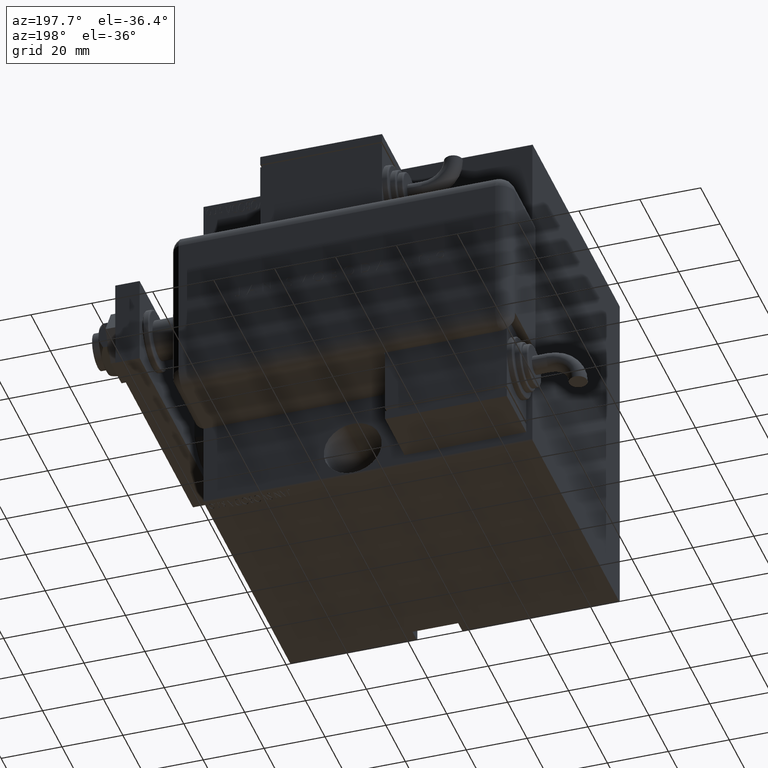
[diagram: clean part render]
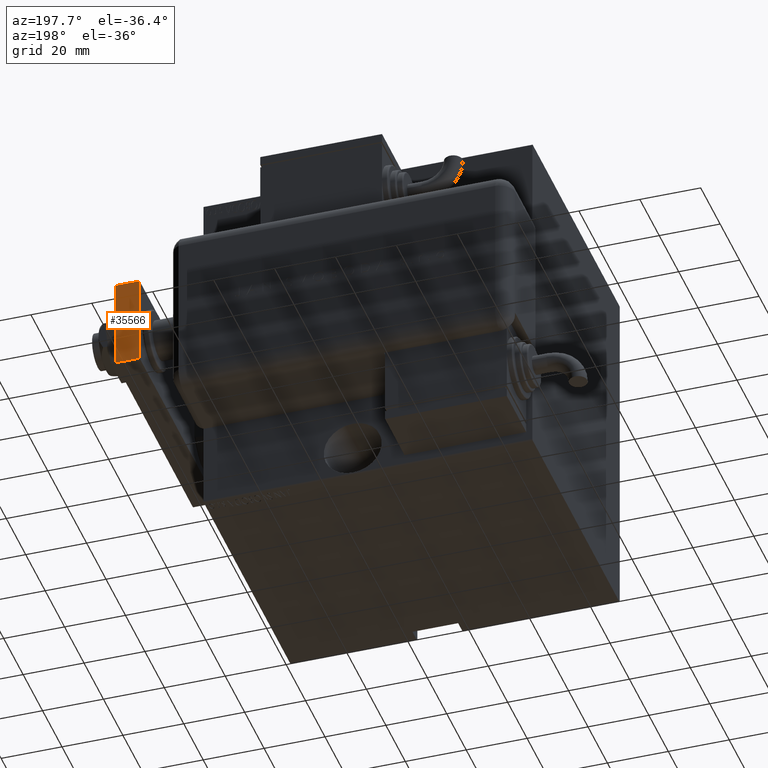
[diagram: same view with one face highlighted and labeled with its STEP entity id]
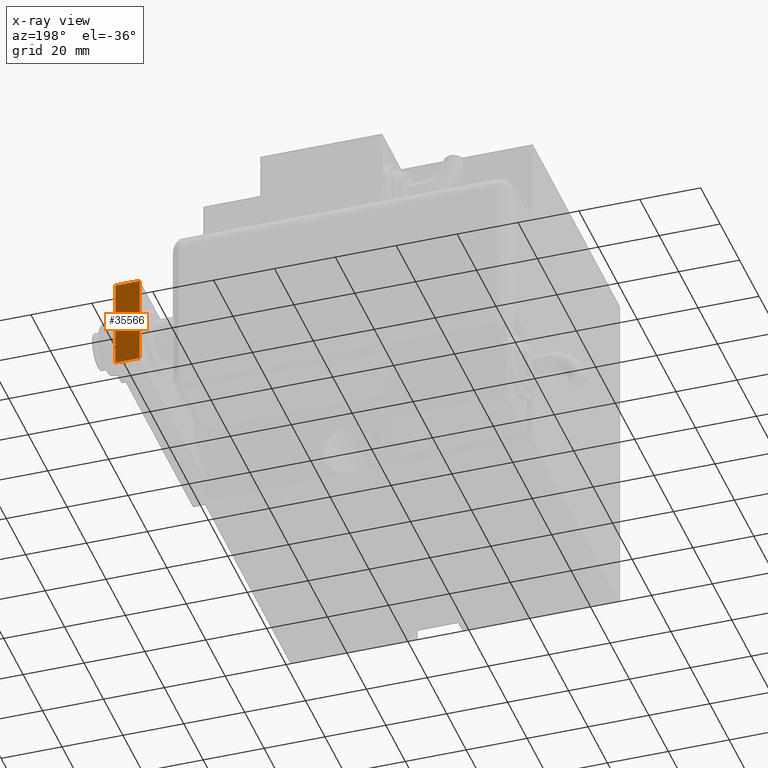
[diagram: x-ray of the same camera — body ghosted, the highlighted face saturated]
A machine part, auxiliary view. The second image highlights one B-rep face of the part: STEP entity #35566.
The next image is the same camera in x-ray: the body ghosted, the highlighted face saturated — about 0% of this face is hidden behind the body in this view.
In plain terms, the highlighted planar face has unit normal (0, -1, 0).
Its self-contained STEP definition (entity closure, byte-faithful):
#198 = FACE_OUTER_BOUND ( 'NONE', #19043, .T. ) ;
#365 = ORIENTED_EDGE ( 'NONE', *, *, #5075, .T. ) ;
#2023 = VERTEX_POINT ( 'NONE', #47038 ) ;
#3936 = VERTEX_POINT ( 'NONE', #17320 ) ;
#5075 = EDGE_CURVE ( 'NONE', #3936, #58118, #55227, .T. ) ;
#6392 = VECTOR ( 'NONE', #13709, 1000.000000000000000 ) ;
#7466 = DIRECTION ( 'NONE',  ( -0.000000000000000000, -0.000000000000000000, -1.000000000000000000 ) ) ;
#11533 = EDGE_CURVE ( 'NONE', #2023, #15477, #32305, .T. ) ;
#12844 = LINE ( 'NONE', #48740, #6392 ) ;
#13709 = DIRECTION ( 'NONE',  ( -0.000000000000000000, -0.000000000000000000, -1.000000000000000000 ) ) ;
#15477 = VERTEX_POINT ( 'NONE', #30764 ) ;
#17320 = CARTESIAN_POINT ( 'NONE',  ( 15.00000000000000178, 85.00000000000000000, 0.000000000000000000 ) ) ;
#19043 = EDGE_LOOP ( 'NONE', ( #365, #26738, #48236, #49546 ) ) ;
#21918 = PLANE ( 'NONE',  #41182 ) ;
#24400 = VECTOR ( 'NONE', #7466, 1000.000000000000000 ) ;
#26738 = ORIENTED_EDGE ( 'NONE', *, *, #44656, .F. ) ;
#27259 = DIRECTION ( 'NONE',  ( -1.000000000000000000, 0.000000000000000000, 0.000000000000000000 ) ) ;
#27907 = CARTESIAN_POINT ( 'NONE',  ( 15.00000000000000178, 85.00000000000000000, 0.000000000000000000 ) ) ;
#30015 = LINE ( 'NONE', #48405, #24400 ) ;
#30764 = CARTESIAN_POINT ( 'NONE',  ( -15.00000000000000000, 85.00000000000000000, 8.000000000000000000 ) ) ;
#32305 = LINE ( 'NONE', #50107, #50308 ) ;
#34969 = DIRECTION ( 'NONE',  ( 0.000000000000000000, -0.000000000000000000, -1.000000000000000000 ) ) ;
#35566 = ADVANCED_FACE ( 'NONE', ( #198 ), #21918, .F. ) ;
#35832 = DIRECTION ( 'NONE',  ( 0.000000000000000000, -1.000000000000000000, 0.000000000000000000 ) ) ;
#40438 = CARTESIAN_POINT ( 'NONE',  ( -15.00000000000000000, 85.00000000000000000, 0.000000000000000000 ) ) ;
#41182 = AXIS2_PLACEMENT_3D ( 'NONE', #44742, #35832, #34969 ) ;
#44369 = VECTOR ( 'NONE', #45993, 1000.000000000000000 ) ;
#44656 = EDGE_CURVE ( 'NONE', #15477, #58118, #30015, .T. ) ;
#44742 = CARTESIAN_POINT ( 'NONE',  ( 15.00000000000000178, 85.00000000000000000, 8.000000000000000000 ) ) ;
#45993 = DIRECTION ( 'NONE',  ( -1.000000000000000000, 0.000000000000000000, 0.000000000000000000 ) ) ;
#47038 = CARTESIAN_POINT ( 'NONE',  ( 15.00000000000000178, 85.00000000000000000, 8.000000000000000000 ) ) ;
#48236 = ORIENTED_EDGE ( 'NONE', *, *, #11533, .F. ) ;
#48405 = CARTESIAN_POINT ( 'NONE',  ( -15.00000000000000000, 85.00000000000000000, 8.000000000000000000 ) ) ;
#48740 = CARTESIAN_POINT ( 'NONE',  ( 15.00000000000000178, 85.00000000000000000, 8.000000000000000000 ) ) ;
#49546 = ORIENTED_EDGE ( 'NONE', *, *, #56175, .T. ) ;
#50107 = CARTESIAN_POINT ( 'NONE',  ( 15.00000000000000178, 85.00000000000000000, 8.000000000000000000 ) ) ;
#50308 = VECTOR ( 'NONE', #27259, 1000.000000000000000 ) ;
#55227 = LINE ( 'NONE', #27907, #44369 ) ;
#56175 = EDGE_CURVE ( 'NONE', #2023, #3936, #12844, .T. ) ;
#58118 = VERTEX_POINT ( 'NONE', #40438 ) ;